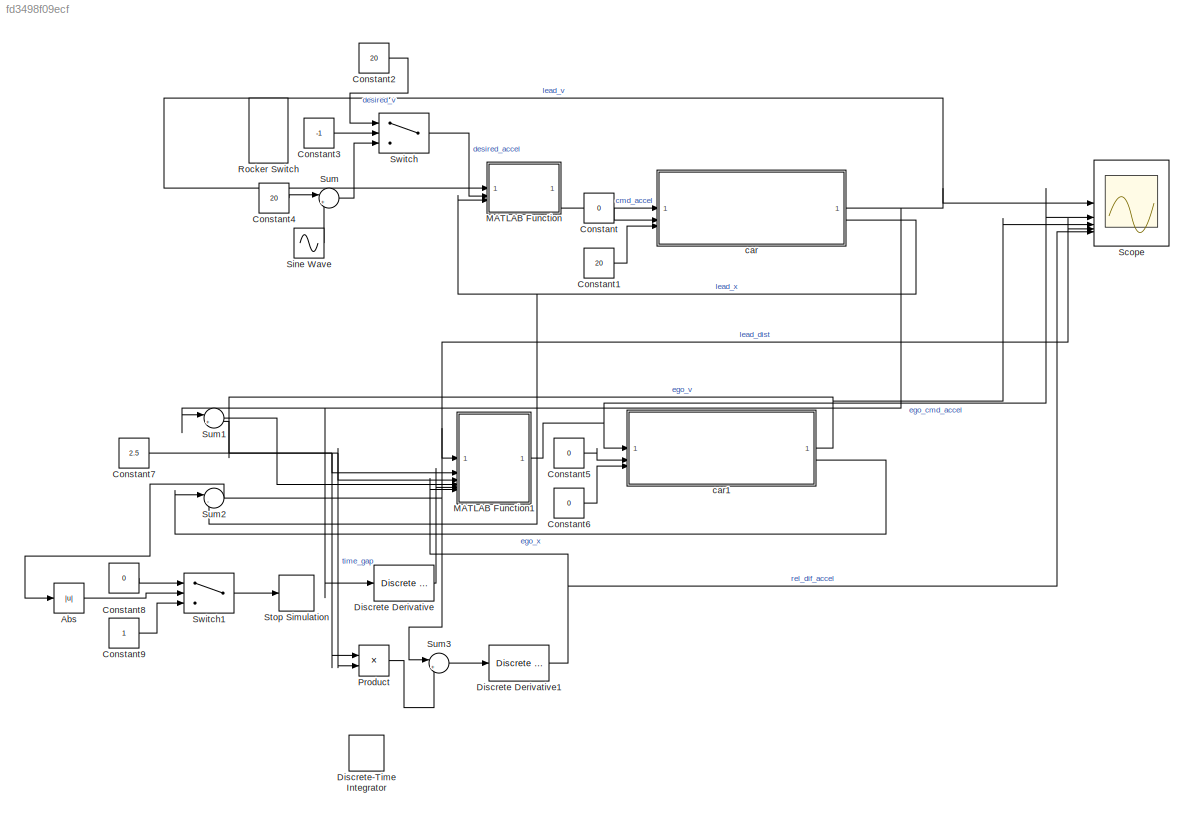
MODEL slx_fd3498f09ecf
KIND model
CONFIG AbsTol = auto
CONFIG EnableMultiTasking = off
CONFIG FixedStep = auto
CONFIG MaxStep = auto
CONFIG MinStep = auto
CONFIG RelTol = 1e-3
CONFIG SampleTimeConstraint = Unconstrained
CONFIG SolverName = VariableStepAuto
CONFIG StartTime = 0.0
CONFIG StopTime = 100
BLOCK [Abs] Abs
  SaturateOnIntegerOverflow = off
BLOCK [Constant] Constant
  Value = 0
BLOCK [Constant] Constant1
  Value = 20
BLOCK [Constant] Constant2
  Value = 20
BLOCK [Constant] Constant3
  Value = -1
BLOCK [Constant] Constant4
  Value = 20
BLOCK [Constant] Constant5
  Value = 0
BLOCK [Constant] Constant6
  Value = 0
BLOCK [Constant] Constant7
  Value = 2.5
BLOCK [Constant] Constant8
  Value = 0
BLOCK [Constant] Constant9
BLOCK [Reference] Discrete Derivative  REF=simulink/Discrete/Discrete Derivative
  SourceBlock = simulink/Discrete/Discrete Derivative
  SourceType = Discrete Derivative
BLOCK [Reference] Discrete Derivative1  REF=simulink/Discrete/Discrete Derivative
  SourceBlock = simulink/Discrete/Discrete Derivative
  SourceType = Discrete Derivative
BLOCK [DiscreteIntegrator] Discrete-Time Integrator
  ICPrevOutput = DiscIntNeverNeededParam
  ICPrevScaledInput = DiscIntNeverNeededParam
  InitialConditionSetting = Auto
  SampleTime = -1
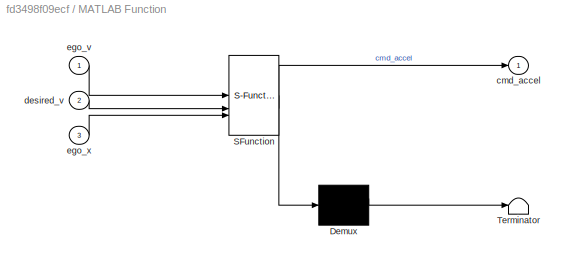
BLOCK [SubSystem] MATLAB Function
  ErrorFcn = Stateflow.Translate.translate
  PermitHierarchicalResolution = ExplicitOnly
  SFBlockType = MATLAB Function
  TreatAsAtomicUnit = on
BLOCK [Demux] MATLAB Function/ Demux 
  Outputs = 1
BLOCK [S-Function] MATLAB Function/ SFunction 
  EnableBusSupport = on
  FunctionName = sf_sfun
  PortCounts = [3 2]
  SFcnIsStateOwnerBlock = off
  SFunctionDeploymentMode = off
  Tag = Stateflow S-Function 2
BLOCK [Terminator] MATLAB Function/ Terminator 
BLOCK [Outport] MATLAB Function/cmd_accel
BLOCK [Inport] MATLAB Function/desired_v
  Port = 2
BLOCK [Inport] MATLAB Function/ego_v
BLOCK [Inport] MATLAB Function/ego_x
  Port = 3
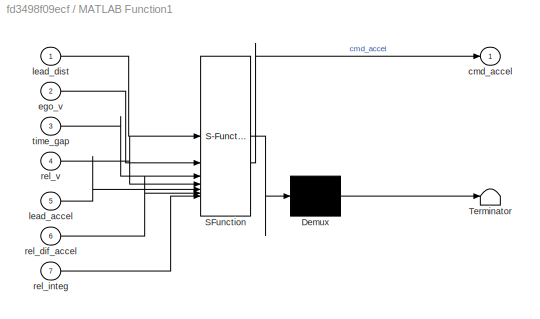
BLOCK [SubSystem] MATLAB Function1
  ErrorFcn = Stateflow.Translate.translate
  PermitHierarchicalResolution = ExplicitOnly
  SFBlockType = MATLAB Function
  TreatAsAtomicUnit = on
BLOCK [Demux] MATLAB Function1/ Demux 
  Outputs = 1
BLOCK [S-Function] MATLAB Function1/ SFunction 
  EnableBusSupport = on
  FunctionName = sf_sfun
  PortCounts = [7 2]
  SFcnIsStateOwnerBlock = off
  SFunctionDeploymentMode = off
  Tag = Stateflow S-Function 1
BLOCK [Terminator] MATLAB Function1/ Terminator 
BLOCK [Outport] MATLAB Function1/cmd_accel
BLOCK [Inport] MATLAB Function1/ego_v
  Port = 2
BLOCK [Inport] MATLAB Function1/lead_accel
  Port = 5
BLOCK [Inport] MATLAB Function1/lead_dist
BLOCK [Inport] MATLAB Function1/rel_dif_accel
  Port = 6
BLOCK [Inport] MATLAB Function1/rel_integ
  Port = 7
BLOCK [Inport] MATLAB Function1/rel_v
  Port = 4
BLOCK [Inport] MATLAB Function1/time_gap
  Port = 3
BLOCK [Product] Product
BLOCK [RockerSwitchBlock] Rocker Switch
BLOCK [Scope] Scope
  Floating = off
  NumInputPorts = 5
  ScopeSpecificationString = Simulink.scopes.TimeScopeBlockCfg('CurrentConfiguration', extmgr.ConfigurationSet(extmgr.Configuration('Core','General UI',true),extmgr.Configuration('Core','Source UI',true),extmgr.Configuration('Sources','WiredSimulink',true),extmgr.Configuration('Visuals','Time Domain',true,'SerializedDisplays',{struct('MinYLimReal','-18.39909','MaxYLimReal','78.26114','YLabelReal','','MinYLimMag','0.00000','Ma...<+1501ch>
BLOCK [Sin] Sine Wave
  Amplitude = 10
  Frequency = 0.5
  SampleTime = 0
BLOCK [Stop] Stop Simulation
BLOCK [Sum] Sum
  Inputs = |++
BLOCK [Sum] Sum1
  Inputs = |+-
BLOCK [Sum] Sum2
  Inputs = |-+
BLOCK [Sum] Sum3
  Inputs = |+-
BLOCK [Switch] Switch
  Criteria = u2 > Threshold
  InputSameDT = off
  SaturateOnIntegerOverflow = off
BLOCK [Switch] Switch1
  Criteria = u2 > Threshold
  InputSameDT = off
  SaturateOnIntegerOverflow = off
  Threshold = 5
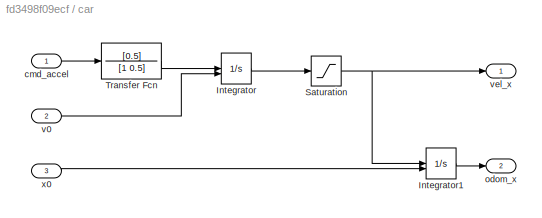
BLOCK [SubSystem] car
BLOCK [Integrator] car/Integrator
  InitialConditionSource = external
BLOCK [Integrator] car/Integrator1
  InitialConditionSource = external
BLOCK [Saturate] car/Saturation
  LowerLimit = -80
  UpperLimit = 80
BLOCK [TransferFcn] car/Transfer Fcn
  Denominator = [1 0.5]
  Numerator = [0.5]
BLOCK [Inport] car/cmd_accel
BLOCK [Outport] car/odom_x
  Port = 2
BLOCK [Inport] car/v0
  Port = 2
BLOCK [Outport] car/vel_x
BLOCK [Inport] car/x0
  Port = 3
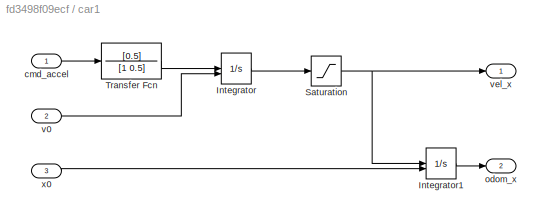
BLOCK [SubSystem] car1
BLOCK [Integrator] car1/Integrator
  InitialConditionSource = external
BLOCK [Integrator] car1/Integrator1
  InitialConditionSource = external
BLOCK [Saturate] car1/Saturation
  LowerLimit = -80
  UpperLimit = 80
BLOCK [TransferFcn] car1/Transfer Fcn
  Denominator = [1 0.5]
  Numerator = [0.5]
BLOCK [Inport] car1/cmd_accel
BLOCK [Outport] car1/odom_x
  Port = 2
BLOCK [Inport] car1/v0
  Port = 2
BLOCK [Outport] car1/vel_x
BLOCK [Inport] car1/x0
  Port = 3
LINE Abs:1 -> Switch1:2
LINE Constant1:1 -> car:3
LINE Constant2:1 -> Switch:1
LINE Constant3:1 -> Switch:2
LINE Constant4:1 -> Sum:1
LINE Constant5:1 -> car1:2
LINE Constant6:1 -> car1:3
NET Constant7:1 -> MATLAB Function1:3, Product:2
LINE Constant8:1 -> Switch1:1
LINE Constant9:1 -> Switch1:3
LINE Constant:1 -> car:2
NET Discrete Derivative1:1 -> MATLAB Function1:6, Scope:5
LINE Discrete Derivative:1 -> MATLAB Function1:5
NET MATLAB Function1:1 -> Scope:2, car1:1
LINE MATLAB Function:1 -> car:1
LINE Product:1 -> Sum3:2
LINE Sine Wave:1 -> Sum:2
LINE Sum1:1 -> MATLAB Function1:4
NET Sum2:1 -> Abs:1, MATLAB Function1:1, Scope:4, Sum3:1
LINE Sum3:1 -> Discrete Derivative1:1
LINE Sum:1 -> Switch:3
LINE Switch1:1 -> Stop Simulation:1
LINE Switch:1 -> MATLAB Function:2
LINE car/Integrator1:1 -> car/odom_x:1
LINE car/Integrator:1 -> car/Saturation:1
NET car/Saturation:1 -> car/Integrator1:1, car/vel_x:1
LINE car/Transfer Fcn:1 -> car/Integrator:1
LINE car/cmd_accel:1 -> car/Transfer Fcn:1
LINE car/v0:1 -> car/Integrator:2
LINE car/x0:1 -> car/Integrator1:2
LINE car1/Integrator1:1 -> car1/odom_x:1
LINE car1/Integrator:1 -> car1/Saturation:1
NET car1/Saturation:1 -> car1/Integrator1:1, car1/vel_x:1
LINE car1/Transfer Fcn:1 -> car1/Integrator:1
LINE car1/cmd_accel:1 -> car1/Transfer Fcn:1
LINE car1/v0:1 -> car1/Integrator:2
LINE car1/x0:1 -> car1/Integrator1:2
NET car1:1 -> MATLAB Function1:2, Product:1, Scope:3, Sum1:2
LINE car1:2 -> Sum2:1
NET car:1 -> Discrete Derivative:1, MATLAB Function:1, Scope:1, Sum1:1
NET car:2 -> MATLAB Function:3, Sum2:2
note: NET lines group one-source signal fan-out (src -> all destinations, sorted); 1:1 wires keep LINE
CHART MATLAB Function1 states=1 transitions=1
  STATE_LABEL 'eML_blk_kernel()'
  STATE_LABEL 'SCRIPT:\nfunction cmd_accel = controller(lead_dist, ego_v, time_gap, rel_v, lead_accel, rel_dif_accel, rel_integ)\n\nforce = 0.4\n\nalpha = 0.4\nbeta = 1\ngamma = 0.2\ndelta = 0.1\n\ncmd_accel = alpha * (-ego_v * time_gap + lead_dist)\ncmd_accel = cmd_accel + beta * lead_accel\ncmd_accel = cmd_accel + gamma * rel_dif_accel\ncmd_accel = cmd_accel + delta * rel_integ\ncmd_accel = cmd_accel * force\nif cmd_accel > ...<+81ch>'
CHART MATLAB Function states=1 transitions=1
  STATE_LABEL 'eML_blk_kernel()'
  STATE_LABEL 'SCRIPT:\nfunction cmd_accel = controller(ego_v, desired_v, ego_x)\n\nalpha = 0.3\n\ncmd_accel = alpha * (desired_v - ego_v)\nif cmd_accel > 1.5\n        cmd_accel = 1.5;\nelseif cmd_accel < -3 \n        cmd_accel = -3;\nend\n'
CHART  states=0 transitions=0
CHART  states=0 transitions=0
